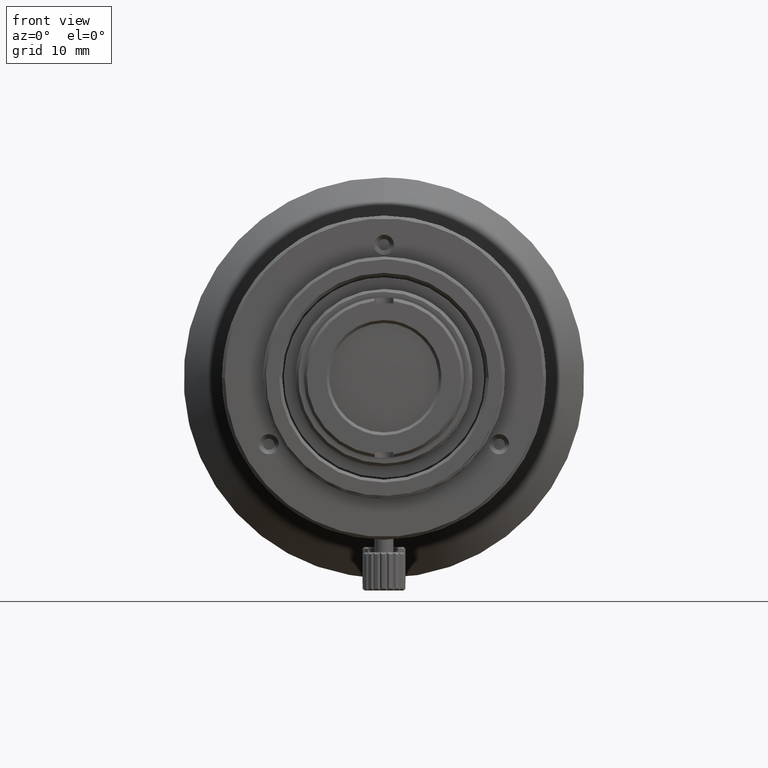
[diagram: clean part render]
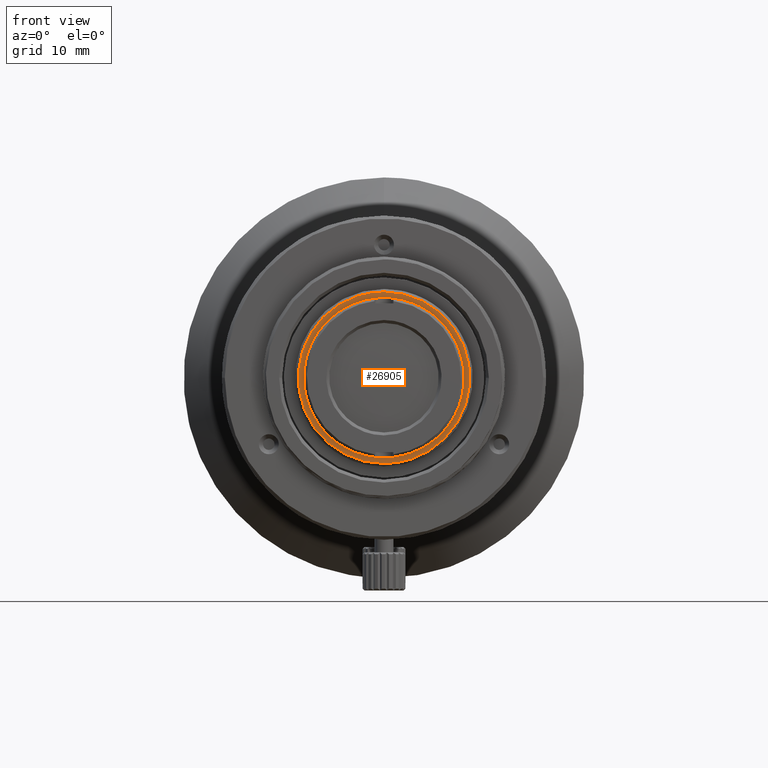
[diagram: same view with one face highlighted and labeled with its STEP entity id]
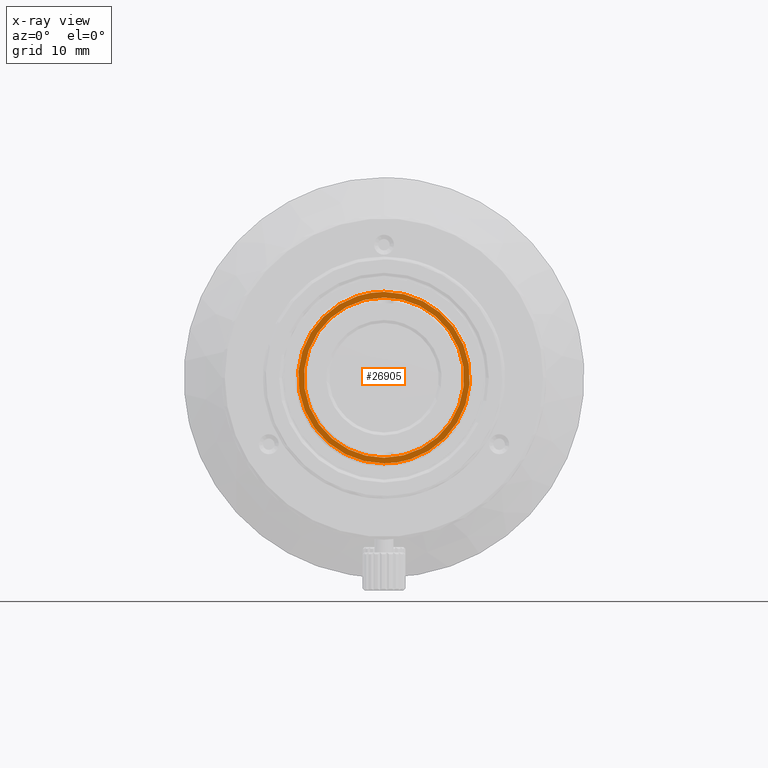
[diagram: x-ray of the same camera — body ghosted, the highlighted face saturated]
A machine part, front view. The second image highlights one B-rep face of the part: STEP entity #26905.
The next image is the same camera in x-ray: the body ghosted, the highlighted face saturated — about 0% of this face is hidden behind the body in this view.
In plain terms, the highlighted planar face has unit normal (0, 1, 0).
Its self-contained STEP definition (entity closure, byte-faithful):
#3506 = CARTESIAN_POINT ( 'NONE',  ( -9.000000000003227640, -16.18905046142022996, 1.178097245096592749 ) ) ;
#4334 = CARTESIAN_POINT ( 'NONE',  ( 7.197001581585802832, -16.18905046142072734, 5.530920479775908838 ) ) ;
#5723 = VERTEX_POINT ( 'NONE', #64002 ) ;
#6255 = EDGE_CURVE ( 'NONE', #5723, #41003, #43020, .T. ) ;
#7879 = ORIENTED_EDGE ( 'NONE', *, *, #15927, .F. ) ;
#9980 = CARTESIAN_POINT ( 'NONE',  ( 2.355730959234235922, -16.18905046142072379, -8.765754090017495059 ) ) ;
#11011 = CARTESIAN_POINT ( 'NONE',  ( 1.099557428803302983, -16.18905046141999904, -8.400000000000000355 ) ) ;
#11398 = CARTESIAN_POINT ( 'NONE',  ( 5.530920479775910614, -16.18905046142072379, 7.197001581585801944 ) ) ;
#11513 = CARTESIAN_POINT ( 'NONE',  ( -5.530920479776218812, -16.18905046142022641, 7.197001581586198071 ) ) ;
#11575 = FACE_BOUND ( 'NONE', #41457, .T. ) ;
#11868 = CARTESIAN_POINT ( 'NONE',  ( 1.178097245096530798, -16.18905046142072379, -9.000000000002726708 ) ) ;
#11982 = CARTESIAN_POINT ( 'NONE',  ( -4.532570823339718835, -16.18905046142022641, -7.864077495191142297 ) ) ;
#13029 = ORIENTED_EDGE ( 'NONE', *, *, #6255, .F. ) ;
#15892 = CARTESIAN_POINT ( 'NONE',  ( -7.339805662834848476, -16.18905046141999549, 4.230399433950450927 ) ) ;
#15927 = EDGE_CURVE ( 'NONE', #41003, #5723, #89183, .T. ) ;
#17170 = CARTESIAN_POINT ( 'NONE',  ( -7.197001581586204288, -16.18905046142022641, 5.530920479776216148 ) ) ;
#17994 = CARTESIAN_POINT ( 'NONE',  ( 5.530920479775910614, -16.18905046142072734, -7.197001581585801944 ) ) ;
#18576 = CARTESIAN_POINT ( 'NONE',  ( -1.178097245096593637, -16.18905046142022996, -9.000000000003225864 ) ) ;
#18925 = CARTESIAN_POINT ( 'NONE',  ( 8.765754090017495059, -16.18905046142072734, 2.355730959234235922 ) ) ;
#19487 = CARTESIAN_POINT ( 'NONE',  ( -4.114813245135107032E-16, -16.18905046141999904, -8.400000000000000355 ) ) ;
#21558 = CARTESIAN_POINT ( 'NONE',  ( -2.198682230393122161, -16.18905046142000259, 8.181370483525631343 ) ) ;
#22971 = CARTESIAN_POINT ( 'NONE',  ( -1.099557430666344704, -16.18905046141999904, 8.399999999739121037 ) ) ;
#23279 = ORIENTED_EDGE ( 'NONE', *, *, #41264, .F. ) ;
#24601 = CARTESIAN_POINT ( 'NONE',  ( 7.864077495190703537, -16.18905046142072734, -4.532570823339469257 ) ) ;
#24692 = CARTESIAN_POINT ( 'NONE',  ( 8.399999999926370364, -16.18905046141999904, 1.099557429365799255 ) ) ;
#25640 = CARTESIAN_POINT ( 'NONE',  ( 2.198682227615895712, -16.18905046141999904, 8.181370484289447020 ) ) ;
#25661 = CARTESIAN_POINT ( 'NONE',  ( 6.613092715397710187E-16, -16.18905046142043247, -9.000000000002437162 ) ) ;
#26123 = CARTESIAN_POINT ( 'NONE',  ( -7.197001581586199848, -16.18905046142022286, -5.530920479776217924 ) ) ;
#26567 = CARTESIAN_POINT ( 'NONE',  ( 5.162192447981047039, -16.18905046141999904, -6.717201476005019600 ) ) ;
#26905 = ADVANCED_FACE ( 'NONE', ( #11575, #54466 ), #83230, .F. ) ;
#27460 = AXIS2_PLACEMENT_3D ( 'NONE', #40326, #64310, #43097 ) ;
#33201 = CARTESIAN_POINT ( 'NONE',  ( -8.765754090017981781, -16.18905046142023352, -2.355730959234370481 ) ) ;
#35716 = CARTESIAN_POINT ( 'NONE',  ( -5.162192447449578836, -16.18905046141999904, -6.717201476392188120 ) ) ;
#36321 = CARTESIAN_POINT ( 'NONE',  ( 6.613092715397710187E-16, -16.18905046142043247, -9.000000000002437162 ) ) ;
#37120 = CARTESIAN_POINT ( 'NONE',  ( -6.717201475779803310, -16.18905046141999549, -5.162192448246428533 ) ) ;
#37590 = CARTESIAN_POINT ( 'NONE',  ( -6.717201477004567600, -16.18905046141999904, 5.162192446652727362 ) ) ;
#37829 = CARTESIAN_POINT ( 'NONE',  ( -4.408728476931806792E-16, -16.18905046142043247, 9.000000000002437162 ) ) ;
#40157 = CARTESIAN_POINT ( 'NONE',  ( 6.613092715397710187E-16, -16.18905046142043247, -9.000000000002437162 ) ) ;
#40326 = CARTESIAN_POINT ( 'NONE',  ( 0.000000000000000000, -16.18905046141999904, 0.000000000000000000 ) ) ;
#40717 = CARTESIAN_POINT ( 'NONE',  ( 4.230399435281738008, -16.18905046141999904, -7.339805662087009352 ) ) ;
#41003 = VERTEX_POINT ( 'NONE', #57756 ) ;
#41264 = EDGE_CURVE ( 'NONE', #90553, #66004, #53277, .T. ) ;
#41457 = EDGE_LOOP ( 'NONE', ( #13029, #7879 ) ) ;
#42277 = EDGE_LOOP ( 'NONE', ( #89196, #23279 ) ) ;
#43020 = B_SPLINE_CURVE_WITH_KNOTS ( 'NONE', 3,
 ( #51716, #22971, #21558, #73415, #50788, #37590, #15892, #86629, #57859, #80022, #57394, #44190, #37120, #35716, #80489, #79553, #58804, #65398 ),
 .UNSPECIFIED., .F., .F.,
 ( 4, 2, 2, 2, 2, 2, 2, 2, 4 ),
 ( 0.000000000000000000, 0.1250000000000000278, 0.2500000000000000000, 0.3749999999999999445, 0.4999999999999999445, 0.6249999999999998890, 0.7499999999999998890, 0.8750000000000000000, 1.000000000000000000 ),
 .UNSPECIFIED. ) ;
#43097 = DIRECTION ( 'NONE',  ( 0.000000000000000000, -0.000000000000000000, 1.000000000000000000 ) ) ;
#44190 = CARTESIAN_POINT ( 'NONE',  ( -7.339805661831163341, -16.18905046141999904, -4.230399435691866827 ) ) ;
#44277 = B_SPLINE_CURVE_WITH_KNOTS ( 'NONE', 3,
 ( #54763, #75518, #83530, #75991, #11398, #4334, #89193, #18925, #67958, #88728, #67497, #24601, #47700, #17994, #76456, #9980, #11868, #40157 ),
 .UNSPECIFIED., .F., .F.,
 ( 4, 2, 2, 2, 2, 2, 2, 2, 4 ),
 ( 0.000000000000000000, 0.1250000000000000000, 0.2500000000000000000, 0.3750000000000000000, 0.5000000000000000000, 0.6250000000000000000, 0.7500000000000000000, 0.8750000000000000000, 1.000000000000000000 ),
 .UNSPECIFIED. ) ;
#46380 = CARTESIAN_POINT ( 'NONE',  ( 4.230399434298731443, -16.18905046141999549, 7.339805662653576590 ) ) ;
#47700 = CARTESIAN_POINT ( 'NONE',  ( 7.197001581585801944, -16.18905046142072379, -5.530920479775907950 ) ) ;
#48253 = CARTESIAN_POINT ( 'NONE',  ( 8.181370484142215460, -16.18905046141999549, -2.198682228163754360 ) ) ;
#50788 = CARTESIAN_POINT ( 'NONE',  ( -5.162192449043278231, -16.18905046141999904, 6.717201475167424718 ) ) ;
#51716 = CARTESIAN_POINT ( 'NONE',  ( -1.298590268986443729E-09, -16.18905046141999904, 8.400000000000000355 ) ) ;
#52998 = CARTESIAN_POINT ( 'NONE',  ( -4.408728476931806792E-16, -16.18905046142043247, 9.000000000002437162 ) ) ;
#53277 = B_SPLINE_CURVE_WITH_KNOTS ( 'NONE', 3,
 ( #25661, #18576, #82228, #11982, #68073, #26123, #83173, #33201, #69016, #3506, #76103, #75162, #17170, #11513, #90716, #88839, #54874, #52998 ),
 .UNSPECIFIED., .F., .F.,
 ( 4, 2, 2, 2, 2, 2, 2, 2, 4 ),
 ( 0.000000000000000000, 0.1249999999999999445, 0.2499999999999999445, 0.3749999999999999445, 0.5000000000000000000, 0.6249999999999998890, 0.7499999999999998890, 0.8749999999999998890, 1.000000000000000000 ),
 .UNSPECIFIED. ) ;
#53911 = CARTESIAN_POINT ( 'NONE',  ( -1.298590268986443729E-09, -16.18905046141999904, 8.400000000000000355 ) ) ;
#54466 = FACE_OUTER_BOUND ( 'NONE', #42277, .T. ) ;
#54763 = CARTESIAN_POINT ( 'NONE',  ( -4.408728476931806792E-16, -16.18905046142043247, 9.000000000002437162 ) ) ;
#54874 = CARTESIAN_POINT ( 'NONE',  ( -1.178097245096597634, -16.18905046142022641, 9.000000000003224088 ) ) ;
#57394 = CARTESIAN_POINT ( 'NONE',  ( -8.181370483786453818, -16.18905046141999549, -2.198682229422575851 ) ) ;
#57756 = CARTESIAN_POINT ( 'NONE',  ( -4.114813245135107032E-16, -16.18905046141999904, -8.400000000000000355 ) ) ;
#57859 = CARTESIAN_POINT ( 'NONE',  ( -8.400000000130441791, -16.18905046141999904, 1.099557427676908894 ) ) ;
#58804 = CARTESIAN_POINT ( 'NONE',  ( -1.099557428673389570, -16.18905046141999904, -8.400000000000000355 ) ) ;
#60521 = CARTESIAN_POINT ( 'NONE',  ( 7.339805661803725734, -16.18905046142000259, 4.230399435773241734 ) ) ;
#64002 = CARTESIAN_POINT ( 'NONE',  ( -1.298590268986443729E-09, -16.18905046141999904, 8.400000000000000355 ) ) ;
#64310 = DIRECTION ( 'NONE',  ( 0.000000000000000000, 1.000000000000000000, 0.000000000000000000 ) ) ;
#65398 = CARTESIAN_POINT ( 'NONE',  ( -4.114813245135107032E-16, -16.18905046141999904, -8.400000000000000355 ) ) ;
#66004 = VERTEX_POINT ( 'NONE', #37829 ) ;
#66646 = EDGE_CURVE ( 'NONE', #66004, #90553, #44277, .T. ) ;
#67497 = CARTESIAN_POINT ( 'NONE',  ( 8.765754090017495059, -16.18905046142072379, -2.355730959234234589 ) ) ;
#67584 = CARTESIAN_POINT ( 'NONE',  ( 8.181370483847752340, -16.18905046141999904, 2.198682229259468546 ) ) ;
#67958 = CARTESIAN_POINT ( 'NONE',  ( 9.000000000002726708, -16.18905046142072379, 1.178097245096530132 ) ) ;
#68073 = CARTESIAN_POINT ( 'NONE',  ( -5.530920479776214371, -16.18905046142022641, -7.197001581586201624 ) ) ;
#68521 = CARTESIAN_POINT ( 'NONE',  ( 7.339805662370292971, -16.18905046141999904, -4.230399434790236057 ) ) ;
#69016 = CARTESIAN_POINT ( 'NONE',  ( -9.000000000003227640, -16.18905046142022996, -1.178097245096597190 ) ) ;
#73415 = CARTESIAN_POINT ( 'NONE',  ( -4.230399436562577442, -16.18905046141999904, 7.339805661329318553 ) ) ;
#75137 = CARTESIAN_POINT ( 'NONE',  ( 1.099557427678308663, -16.18905046141999904, 8.400000000147262114 ) ) ;
#75162 = CARTESIAN_POINT ( 'NONE',  ( -7.864077495191136968, -16.18905046142022641, 4.532570823339722388 ) ) ;
#75518 = CARTESIAN_POINT ( 'NONE',  ( 1.178097245096529688, -16.18905046142072734, 9.000000000002726708 ) ) ;
#75991 = CARTESIAN_POINT ( 'NONE',  ( 4.532570823339466592, -16.18905046142072024, 7.864077495190701761 ) ) ;
#76103 = CARTESIAN_POINT ( 'NONE',  ( -8.765754090017981781, -16.18905046142022641, 2.355730959234368260 ) ) ;
#76456 = CARTESIAN_POINT ( 'NONE',  ( 4.532570823339470145, -16.18905046142072379, -7.864077495190705314 ) ) ;
#79553 = CARTESIAN_POINT ( 'NONE',  ( -2.198682228452042420, -16.18905046142000259, -8.181370484047279845 ) ) ;
#80022 = CARTESIAN_POINT ( 'NONE',  ( -8.399999999869560696, -16.18905046141999549, -1.099557429669868025 ) ) ;
#80489 = CARTESIAN_POINT ( 'NONE',  ( -4.230399434821164206, -16.18905046141999904, -7.339805662333002800 ) ) ;
#82206 = CARTESIAN_POINT ( 'NONE',  ( 5.162192447081422664, -16.18905046141999904, 6.717201476696381235 ) ) ;
#82228 = CARTESIAN_POINT ( 'NONE',  ( -2.355730959234364708, -16.18905046142022641, -8.765754090017983557 ) ) ;
#82678 = CARTESIAN_POINT ( 'NONE',  ( 8.400000000073632123, -16.18905046141999904, -1.099557428240805157 ) ) ;
#83173 = CARTESIAN_POINT ( 'NONE',  ( -7.864077495191136968, -16.18905046142022641, -4.532570823339724164 ) ) ;
#83230 = PLANE ( 'NONE',  #27460 ) ;
#83530 = CARTESIAN_POINT ( 'NONE',  ( 2.355730959234235478, -16.18905046142072379, 8.765754090017495059 ) ) ;
#84083 = CARTESIAN_POINT ( 'NONE',  ( 6.717201476350701306, -16.18905046141999904, -5.162192447531236184 ) ) ;
#86629 = CARTESIAN_POINT ( 'NONE',  ( -8.181370484308105873, -16.18905046141999904, 2.198682227481495222 ) ) ;
#88728 = CARTESIAN_POINT ( 'NONE',  ( 9.000000000002726708, -16.18905046142072734, -1.178097245096528578 ) ) ;
#88839 = CARTESIAN_POINT ( 'NONE',  ( -2.355730959234370925, -16.18905046142022641, 8.765754090017983557 ) ) ;
#89183 = B_SPLINE_CURVE_WITH_KNOTS ( 'NONE', 3,
 ( #19487, #11011, #91160, #40717, #26567, #84083, #68521, #48253, #82678, #24692, #67584, #60521, #89283, #82206, #46380, #25640, #75137, #53911 ),
 .UNSPECIFIED., .F., .F.,
 ( 4, 2, 2, 2, 2, 2, 2, 2, 4 ),
 ( 0.000000000000000000, 0.1250000000000000278, 0.2500000000000000000, 0.3750000000000000000, 0.5000000000000000000, 0.6250000000000000000, 0.7499999999999998890, 0.8750000000000000000, 1.000000000000000000 ),
 .UNSPECIFIED. ) ;
#89193 = CARTESIAN_POINT ( 'NONE',  ( 7.864077495190705314, -16.18905046142072379, 4.532570823339468369 ) ) ;
#89196 = ORIENTED_EDGE ( 'NONE', *, *, #66646, .F. ) ;
#89283 = CARTESIAN_POINT ( 'NONE',  ( 6.717201475659337895, -16.18905046141999904, 5.162192448430857006 ) ) ;
#90553 = VERTEX_POINT ( 'NONE', #36321 ) ;
#90716 = CARTESIAN_POINT ( 'NONE',  ( -4.532570823339724164, -16.18905046142022641, 7.864077495191138745 ) ) ;
#91160 = CARTESIAN_POINT ( 'NONE',  ( 2.198682228711611231, -16.18905046142000259, -8.181370483994985676 ) ) ;